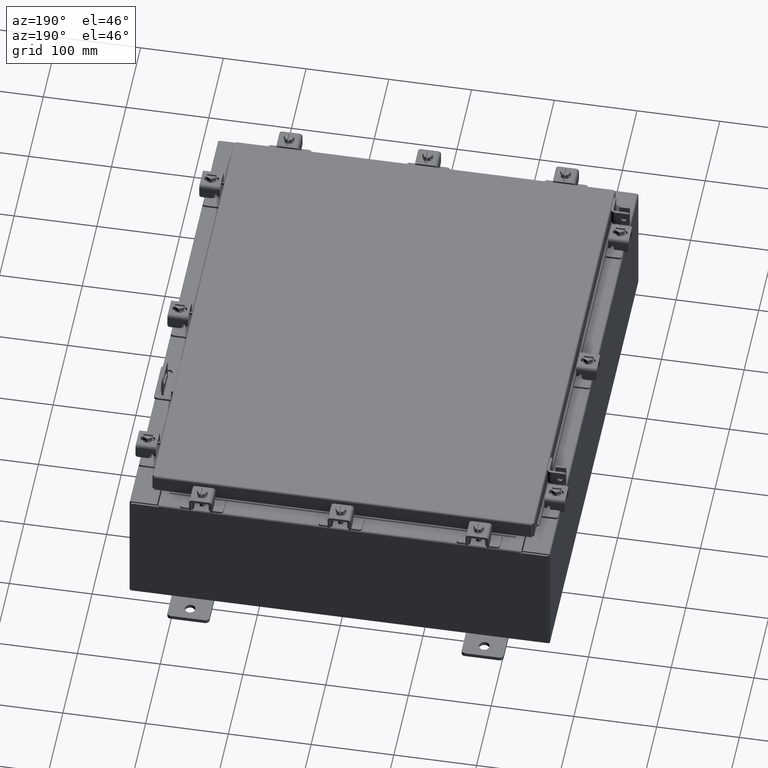
[diagram: clean part render]
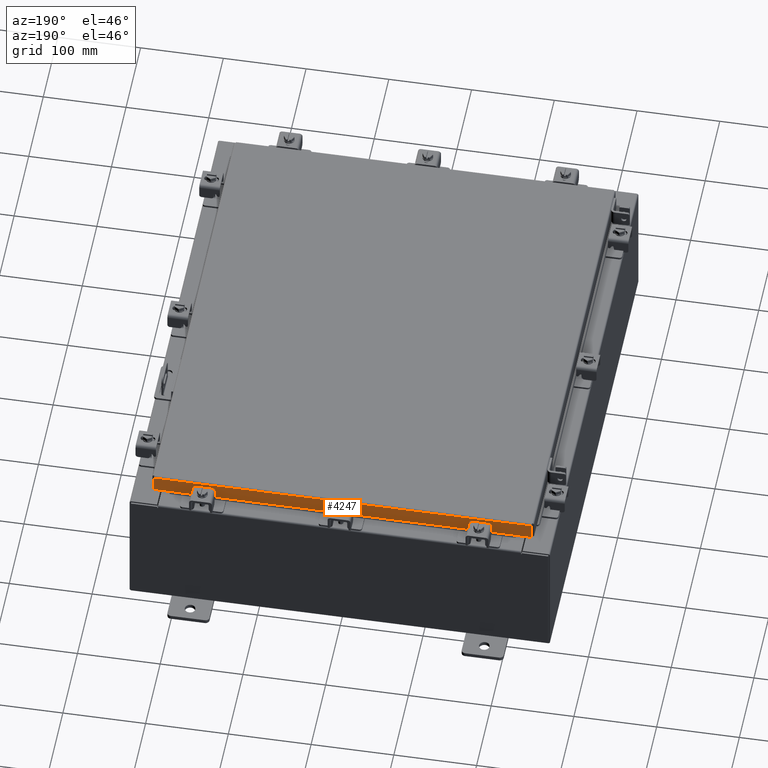
[diagram: same view with one face highlighted and labeled with its STEP entity id]
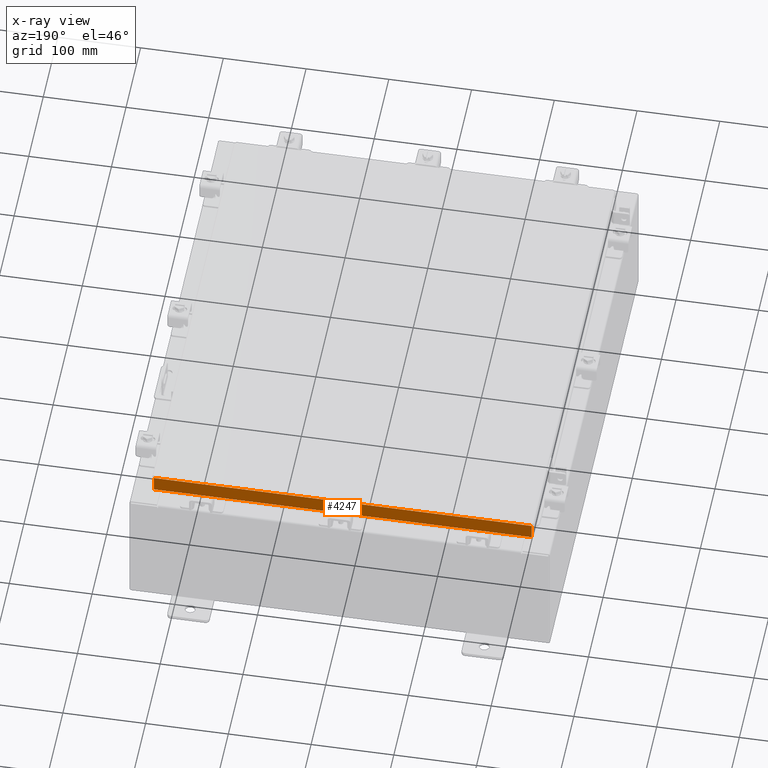
[diagram: x-ray of the same camera — body ghosted, the highlighted face saturated]
A machine part, auxiliary view. The second image highlights one B-rep face of the part: STEP entity #4247.
The next image is the same camera in x-ray: the body ghosted, the highlighted face saturated — about 0% of this face is hidden behind the body in this view.
In plain terms, the highlighted planar face has unit normal (0, -1, -0).
Its self-contained STEP definition (entity closure, byte-faithful):
#396 = CARTESIAN_POINT ( 'NONE',  ( 8.989157864376267100, 11.09400000000000100, -0.8499999999999996400 ) ) ;
#502 = VECTOR ( 'NONE', #3153, 39.37007874015748100 ) ;
#593 = CARTESIAN_POINT ( 'NONE',  ( -9.077999999999999400, 11.09400000000000100, -0.8500000000000019800 ) ) ;
#1033 = CARTESIAN_POINT ( 'NONE',  ( -9.077999999999999400, 11.09400000000000100, -0.8500000000000019800 ) ) ;
#1301 = ORIENTED_EDGE ( 'NONE', *, *, #1606, .F. ) ;
#1606 = EDGE_CURVE ( 'NONE', #1723, #20886, #2933, .T. ) ;
#1723 = VERTEX_POINT ( 'NONE', #13743 ) ;
#1948 = ORIENTED_EDGE ( 'NONE', *, *, #13560, .F. ) ;
#2933 = LINE ( 'NONE', #10997, #16731 ) ;
#3153 = DIRECTION ( 'NONE',  ( 1.000000000000000000, -0.0000000000000000000, -0.0000000000000000000 ) ) ;
#3400 = DIRECTION ( 'NONE',  ( 0.0000000000000000000, 2.818880942772351900E-015, -1.000000000000000000 ) ) ;
#3484 = EDGE_CURVE ( 'NONE', #1723, #22460, #8857, .T. ) ;
#4177 = DIRECTION ( 'NONE',  ( 3.605222026166233900E-031, -1.000000000000000000, -2.818880942772351900E-015 ) ) ;
#4247 = ADVANCED_FACE ( 'NONE', ( #17174 ), #18013, .F. ) ;
#4471 = ORIENTED_EDGE ( 'NONE', *, *, #14335, .F. ) ;
#5181 = LINE ( 'NONE', #8338, #502 ) ;
#5352 = ORIENTED_EDGE ( 'NONE', *, *, #18402, .F. ) ;
#5494 = VECTOR ( 'NONE', #11467, 39.37007874015748100 ) ;
#5882 = DIRECTION ( 'NONE',  ( 1.000000000000000000, -4.379057701015054300E-047, 1.278955053213606700E-016 ) ) ;
#6181 = LINE ( 'NONE', #593, #19493 ) ;
#7255 = EDGE_CURVE ( 'NONE', #20886, #17879, #13113, .T. ) ;
#7505 = CARTESIAN_POINT ( 'NONE',  ( -8.239157864376267100, 11.09399999999999900, -0.8500000000000046400 ) ) ;
#8050 = CARTESIAN_POINT ( 'NONE',  ( -8.989157864376267100, 11.09400000000000100, -0.8500000000000019800 ) ) ;
#8338 = CARTESIAN_POINT ( 'NONE',  ( -8.239157864376267100, 11.09399999999999900, -0.8500000000000046400 ) ) ;
#8520 = VECTOR ( 'NONE', #13110, 39.37007874015748100 ) ;
#8657 = CARTESIAN_POINT ( 'NONE',  ( -8.989157864376267100, 11.09399999999999900, -0.07469999999999978000 ) ) ;
#8826 = CARTESIAN_POINT ( 'NONE',  ( 8.239157864376267100, 11.09399999999999900, -0.8500000000000046400 ) ) ;
#8857 = LINE ( 'NONE', #18939, #13433 ) ;
#9529 = AXIS2_PLACEMENT_3D ( 'NONE', #16260, #4177, #14549 ) ;
#10093 = LINE ( 'NONE', #1033, #5494 ) ;
#10997 = CARTESIAN_POINT ( 'NONE',  ( -9.077999999999999400, 11.09399999999999900, -0.08770000000000007000 ) ) ;
#11467 = DIRECTION ( 'NONE',  ( 1.000000000000000000, -4.379057701015054300E-047, 1.278955053213606700E-016 ) ) ;
#11666 = CARTESIAN_POINT ( 'NONE',  ( -8.989157864376267100, 11.09399999999999900, -0.08770000000000007000 ) ) ;
#12043 = VERTEX_POINT ( 'NONE', #7505 ) ;
#13110 = DIRECTION ( 'NONE',  ( -0.0000000000000000000, 2.818880942772351900E-015, -1.000000000000000000 ) ) ;
#13113 = LINE ( 'NONE', #8657, #8520 ) ;
#13433 = VECTOR ( 'NONE', #3400, 39.37007874015748100 ) ;
#13560 = EDGE_CURVE ( 'NONE', #17879, #12043, #10093, .T. ) ;
#13743 = CARTESIAN_POINT ( 'NONE',  ( 8.989157864376267100, 11.09399999999999900, -0.08770000000000007000 ) ) ;
#14335 = EDGE_CURVE ( 'NONE', #12043, #16383, #5181, .T. ) ;
#14549 = DIRECTION ( 'NONE',  ( 0.0000000000000000000, 2.818880942772351900E-015, -1.000000000000000000 ) ) ;
#16217 = EDGE_LOOP ( 'NONE', ( #1301, #18454, #5352, #4471, #1948, #20518 ) ) ;
#16260 = CARTESIAN_POINT ( 'NONE',  ( -3.999633315828819900E-030, 11.09399999999999900, 3.153347883512804900E-014 ) ) ;
#16383 = VERTEX_POINT ( 'NONE', #8826 ) ;
#16731 = VECTOR ( 'NONE', #20452, 39.37007874015748100 ) ;
#17174 = FACE_OUTER_BOUND ( 'NONE', #16217, .T. ) ;
#17879 = VERTEX_POINT ( 'NONE', #8050 ) ;
#18013 = PLANE ( 'NONE',  #9529 ) ;
#18402 = EDGE_CURVE ( 'NONE', #16383, #22460, #6181, .T. ) ;
#18454 = ORIENTED_EDGE ( 'NONE', *, *, #3484, .T. ) ;
#18939 = CARTESIAN_POINT ( 'NONE',  ( 8.989157864376267100, 11.09399999999999900, 3.153347883512804900E-014 ) ) ;
#19493 = VECTOR ( 'NONE', #5882, 39.37007874015748100 ) ;
#20452 = DIRECTION ( 'NONE',  ( -1.000000000000000000, -3.605222026166234800E-031, -9.826997386333231700E-046 ) ) ;
#20518 = ORIENTED_EDGE ( 'NONE', *, *, #7255, .F. ) ;
#20886 = VERTEX_POINT ( 'NONE', #11666 ) ;
#22460 = VERTEX_POINT ( 'NONE', #396 ) ;